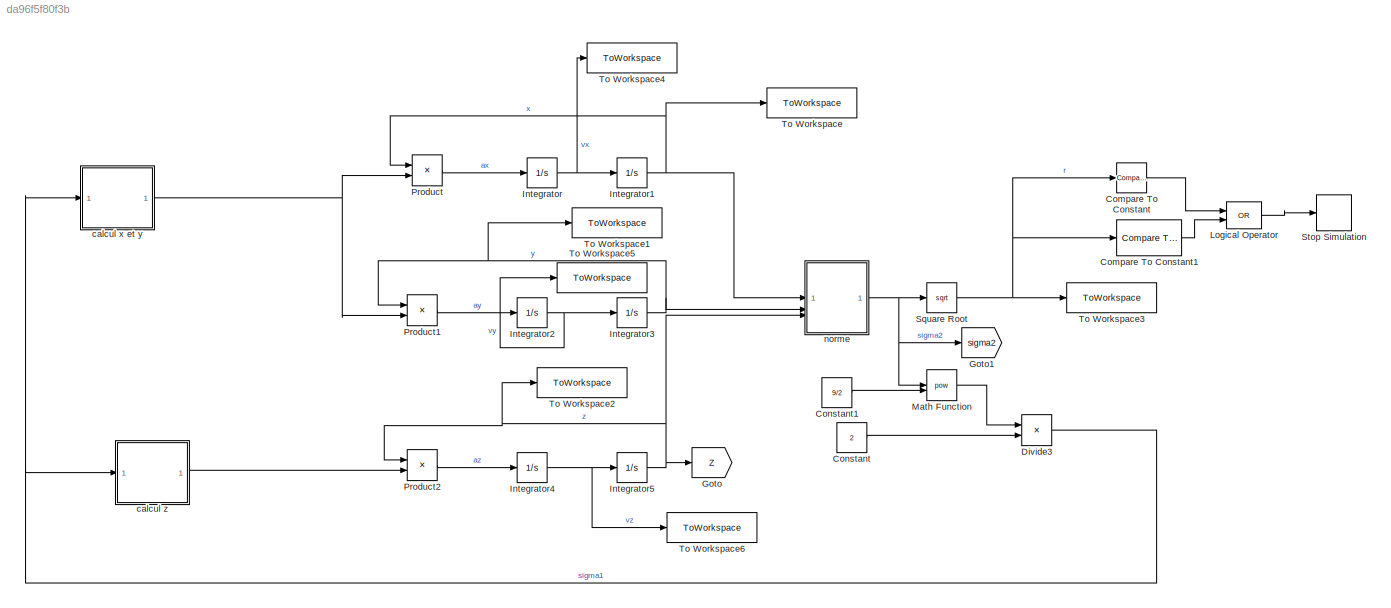
MODEL slx_da96f5f80f3b
KIND model
CONFIG AbsTol = auto
CONFIG EnableMultiTasking = off
CONFIG FixedStep = 10
CONFIG MaxStep = auto
CONFIG MinStep = auto
CONFIG RelTol = 1e-3
CONFIG SampleTimeConstraint = Unconstrained
CONFIG SolverName = FixedStepAuto
CONFIG StartTime = 0.0
CONFIG StopTime = 1000000
BLOCK [Reference] Compare To Constant  REF=simulink/Logic and Bit
Operations/Compare
To Constant
  SourceBlock = simulink/Logic and Bit\nOperations/Compare\nTo Constant
  SourceType = Compare To Constant
BLOCK [Reference] Compare To Constant1  REF=simulink/Logic and Bit
Operations/Compare
To Constant
  SourceBlock = simulink/Logic and Bit\nOperations/Compare\nTo Constant
  SourceType = Compare To Constant
BLOCK [Constant] Constant
  Value = 2
BLOCK [Constant] Constant1
  Value = 9/2
BLOCK [Product] Divide3
  Inputs = **
BLOCK [Goto] Goto
  GotoTag = Z
  TagVisibility = global
BLOCK [Goto] Goto1
  GotoTag = sigma2
  TagVisibility = global
BLOCK [Integrator] Integrator
  InitialCondition = v0*sind(theta)
BLOCK [Integrator] Integrator1
  InitialCondition = r*sind(phi)*cosd(theta)
BLOCK [Integrator] Integrator2
  InitialCondition = -v0*cosd(theta)
BLOCK [Integrator] Integrator3
  InitialCondition = r*sind(phi)*sind(theta)
BLOCK [Integrator] Integrator4
BLOCK [Integrator] Integrator5
  InitialCondition = r*cosd(phi)
BLOCK [Logic] Logical Operator
  AllPortsSameDT = off
  Operator = OR
  OutDataTypeStr = boolean
BLOCK [Math] Math Function
  Operator = pow
BLOCK [Product] Product
BLOCK [Product] Product1
BLOCK [Product] Product2
BLOCK [Sqrt] Square Root
BLOCK [Stop] Stop Simulation
BLOCK [ToWorkspace] To Workspace
  FixptAsFi = on
  MaxDataPoints = inf
  SampleTime = -1
  SaveFormat = Timeseries
  VariableName = x
BLOCK [ToWorkspace] To Workspace1
  FixptAsFi = on
  MaxDataPoints = inf
  SampleTime = -1
  SaveFormat = Timeseries
  VariableName = y
BLOCK [ToWorkspace] To Workspace2
  FixptAsFi = on
  MaxDataPoints = inf
  SampleTime = -1
  SaveFormat = Timeseries
  VariableName = z
BLOCK [ToWorkspace] To Workspace3
  FixptAsFi = on
  MaxDataPoints = inf
  SampleTime = -1
  SaveFormat = Timeseries
  VariableName = r
BLOCK [ToWorkspace] To Workspace4
  FixptAsFi = on
  MaxDataPoints = inf
  SampleTime = -1
  SaveFormat = Timeseries
  VariableName = vx
BLOCK [ToWorkspace] To Workspace5
  FixptAsFi = on
  MaxDataPoints = inf
  SampleTime = -1
  SaveFormat = Timeseries
  VariableName = vy
BLOCK [ToWorkspace] To Workspace6
  FixptAsFi = on
  MaxDataPoints = inf
  SampleTime = -1
  SaveFormat = Timeseries
  VariableName = vz
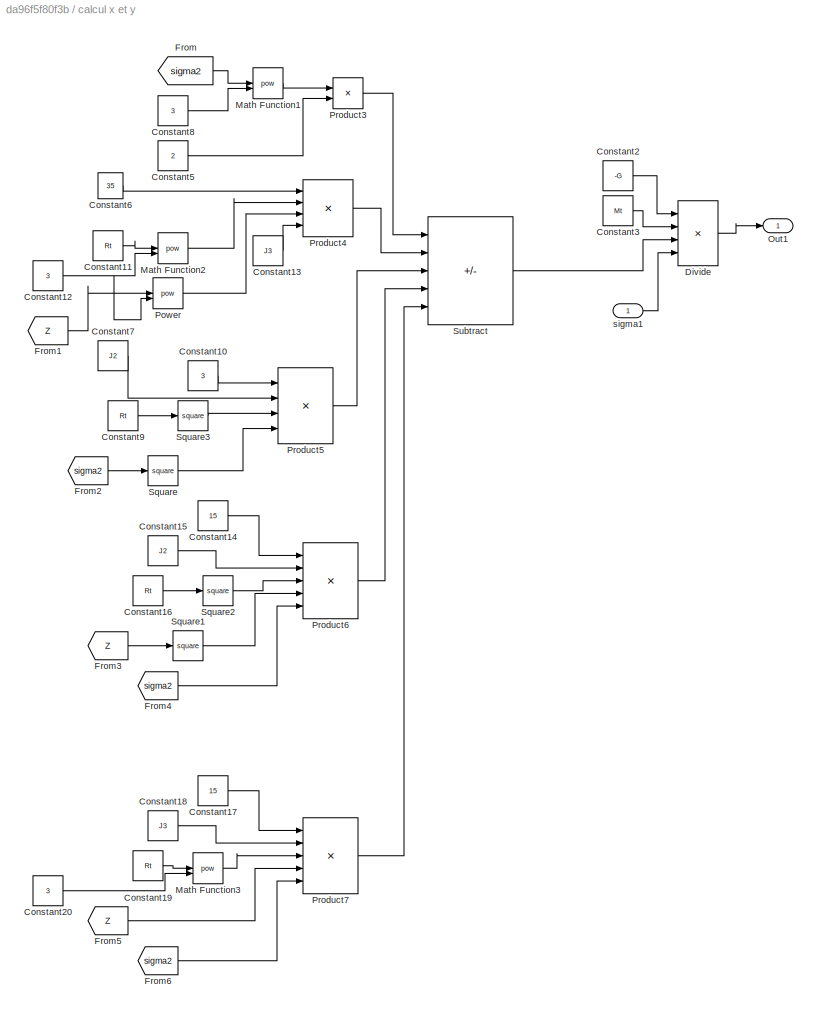
BLOCK [SubSystem] calcul x et y
BLOCK [Constant] calcul x et y/Constant10
  Value = 3
BLOCK [Constant] calcul x et y/Constant11
  Value = Rt
BLOCK [Constant] calcul x et y/Constant12
  Value = 3
BLOCK [Constant] calcul x et y/Constant13
  Value = J3
BLOCK [Constant] calcul x et y/Constant14
  Value = 15
BLOCK [Constant] calcul x et y/Constant15
  Value = J2
BLOCK [Constant] calcul x et y/Constant16
  Value = Rt
BLOCK [Constant] calcul x et y/Constant17
  Value = 15
BLOCK [Constant] calcul x et y/Constant18
  Value = J3
BLOCK [Constant] calcul x et y/Constant19
  Value = Rt
BLOCK [Constant] calcul x et y/Constant2
  Value = -G
BLOCK [Constant] calcul x et y/Constant20
  Value = 3
BLOCK [Constant] calcul x et y/Constant3
  Value = Mt
BLOCK [Constant] calcul x et y/Constant5
  Value = 2
BLOCK [Constant] calcul x et y/Constant6
  Value = 35
BLOCK [Constant] calcul x et y/Constant7
  Value = J2
BLOCK [Constant] calcul x et y/Constant8
  Value = 3
BLOCK [Constant] calcul x et y/Constant9
  Value = Rt
BLOCK [Product] calcul x et y/Divide
  Inputs = ***/
BLOCK [From] calcul x et y/From
  GotoTag = sigma2
  TagVisibility = global
BLOCK [From] calcul x et y/From1
  GotoTag = Z
  TagVisibility = global
BLOCK [From] calcul x et y/From2
  GotoTag = sigma2
  TagVisibility = global
BLOCK [From] calcul x et y/From3
  GotoTag = Z
  TagVisibility = global
BLOCK [From] calcul x et y/From4
  GotoTag = sigma2
  TagVisibility = global
BLOCK [From] calcul x et y/From5
  GotoTag = Z
  TagVisibility = global
BLOCK [From] calcul x et y/From6
  GotoTag = sigma2
  TagVisibility = global
BLOCK [Math] calcul x et y/Math Function1
  Operator = pow
BLOCK [Math] calcul x et y/Math Function2
  Operator = pow
BLOCK [Math] calcul x et y/Math Function3
  Operator = pow
BLOCK [Outport] calcul x et y/Out1
BLOCK [Math] calcul x et y/Power
  Operator = pow
BLOCK [Product] calcul x et y/Product3
BLOCK [Product] calcul x et y/Product4
  Inputs = 4
BLOCK [Product] calcul x et y/Product5
  Inputs = 4
BLOCK [Product] calcul x et y/Product6
  Inputs = 5
BLOCK [Product] calcul x et y/Product7
  Inputs = 5
BLOCK [Math] calcul x et y/Square
  Operator = square
BLOCK [Math] calcul x et y/Square1
  Operator = square
BLOCK [Math] calcul x et y/Square2
  Operator = square
BLOCK [Math] calcul x et y/Square3
  Operator = square
BLOCK [Sum] calcul x et y/Subtract
  IconShape = rectangular
  Inputs = +-+-+
BLOCK [Inport] calcul x et y/sigma1
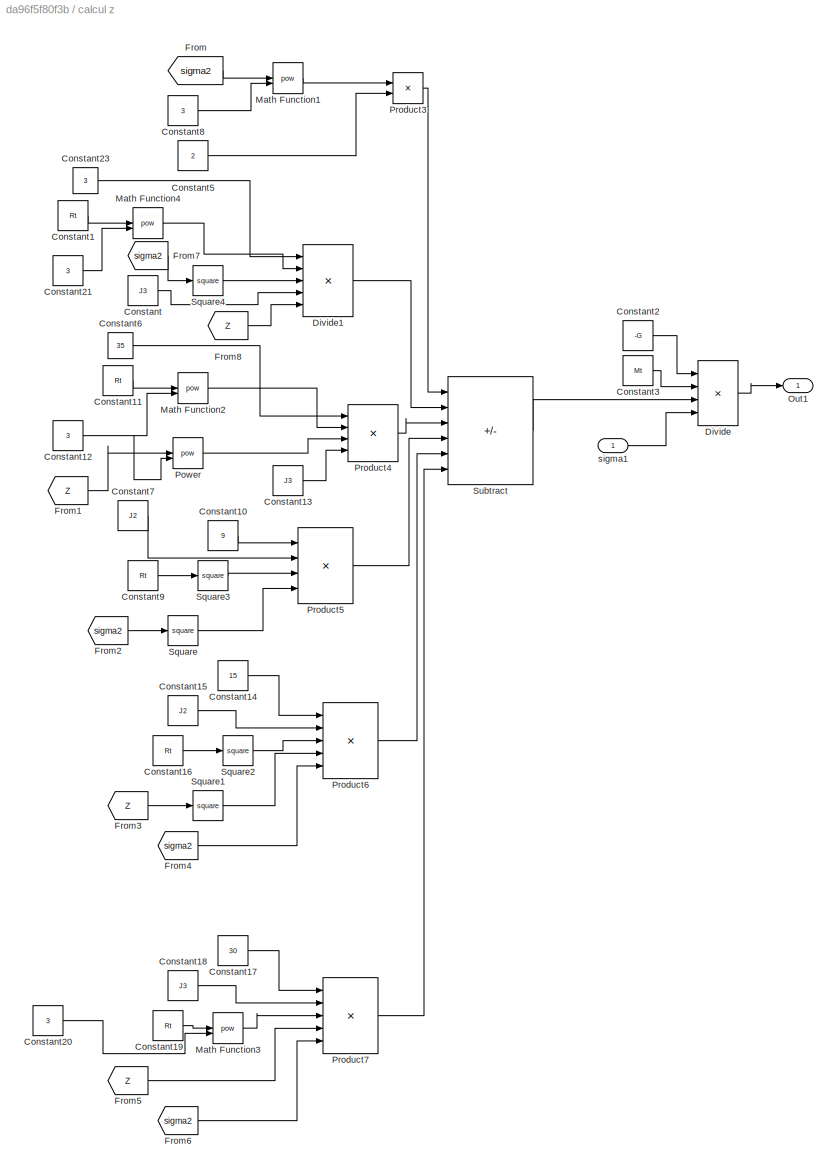
BLOCK [SubSystem] calcul z
BLOCK [Constant] calcul z/Constant
  Value = J3
BLOCK [Constant] calcul z/Constant1
  Value = Rt
BLOCK [Constant] calcul z/Constant10
  Value = 9
BLOCK [Constant] calcul z/Constant11
  Value = Rt
BLOCK [Constant] calcul z/Constant12
  Value = 3
BLOCK [Constant] calcul z/Constant13
  Value = J3
BLOCK [Constant] calcul z/Constant14
  Value = 15
BLOCK [Constant] calcul z/Constant15
  Value = J2
BLOCK [Constant] calcul z/Constant16
  Value = Rt
BLOCK [Constant] calcul z/Constant17
  Value = 30
BLOCK [Constant] calcul z/Constant18
  Value = J3
BLOCK [Constant] calcul z/Constant19
  Value = Rt
BLOCK [Constant] calcul z/Constant2
  Value = -G
BLOCK [Constant] calcul z/Constant20
  Value = 3
BLOCK [Constant] calcul z/Constant21
  Value = 3
BLOCK [Constant] calcul z/Constant23
  Value = 3
BLOCK [Constant] calcul z/Constant3
  Value = Mt
BLOCK [Constant] calcul z/Constant5
  Value = 2
BLOCK [Constant] calcul z/Constant6
  Value = 35
BLOCK [Constant] calcul z/Constant7
  Value = J2
BLOCK [Constant] calcul z/Constant8
  Value = 3
BLOCK [Constant] calcul z/Constant9
  Value = Rt
BLOCK [Product] calcul z/Divide
  Inputs = ***/
BLOCK [Product] calcul z/Divide1
  Inputs = ****/
BLOCK [From] calcul z/From
  GotoTag = sigma2
  TagVisibility = global
BLOCK [From] calcul z/From1
  GotoTag = Z
  TagVisibility = global
BLOCK [From] calcul z/From2
  GotoTag = sigma2
  TagVisibility = global
BLOCK [From] calcul z/From3
  GotoTag = Z
  TagVisibility = global
BLOCK [From] calcul z/From4
  GotoTag = sigma2
  TagVisibility = global
BLOCK [From] calcul z/From5
  GotoTag = Z
  TagVisibility = global
BLOCK [From] calcul z/From6
  GotoTag = sigma2
  TagVisibility = global
BLOCK [From] calcul z/From7
  GotoTag = sigma2
  TagVisibility = global
BLOCK [From] calcul z/From8
  GotoTag = Z
  TagVisibility = global
BLOCK [Math] calcul z/Math Function1
  Operator = pow
BLOCK [Math] calcul z/Math Function2
  Operator = pow
BLOCK [Math] calcul z/Math Function3
  Operator = pow
BLOCK [Math] calcul z/Math Function4
  Operator = pow
BLOCK [Outport] calcul z/Out1
BLOCK [Math] calcul z/Power
  Operator = pow
BLOCK [Product] calcul z/Product3
BLOCK [Product] calcul z/Product4
  Inputs = 4
BLOCK [Product] calcul z/Product5
  Inputs = 4
BLOCK [Product] calcul z/Product6
  Inputs = 5
BLOCK [Product] calcul z/Product7
  Inputs = 5
BLOCK [Math] calcul z/Square
  Operator = square
BLOCK [Math] calcul z/Square1
  Operator = square
BLOCK [Math] calcul z/Square2
  Operator = square
BLOCK [Math] calcul z/Square3
  Operator = square
BLOCK [Math] calcul z/Square4
  Operator = square
BLOCK [Sum] calcul z/Subtract
  IconShape = rectangular
  Inputs = +--+-+
BLOCK [Inport] calcul z/sigma1
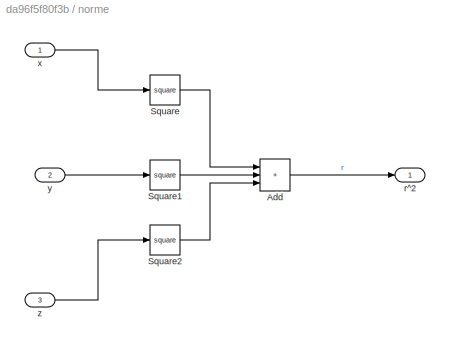
BLOCK [SubSystem] norme
BLOCK [Sum] norme/Add
  IconShape = rectangular
  Inputs = +++
BLOCK [Math] norme/Square
  Operator = square
BLOCK [Math] norme/Square1
  Operator = square
BLOCK [Math] norme/Square2
  Operator = square
BLOCK [Outport] norme/r^2
BLOCK [Inport] norme/x
BLOCK [Inport] norme/y
  Port = 2
BLOCK [Inport] norme/z
  Port = 3
LINE Compare To Constant1:1 -> Logical Operator:2
LINE Compare To Constant:1 -> Logical Operator:1
LINE Constant1:1 -> Math Function:2
LINE Constant:1 -> Divide3:2
NET Divide3:1 -> calcul x et y:1, calcul z:1
NET Integrator1:1 -> Product:1, To Workspace:1, norme:1
NET Integrator2:1 -> Integrator3:1, To Workspace5:1
NET Integrator3:1 -> Product1:1, To Workspace1:1, norme:2
NET Integrator4:1 -> Integrator5:1, To Workspace6:1
NET Integrator5:1 -> Goto:1, Product2:1, To Workspace2:1, norme:3
NET Integrator:1 -> Integrator1:1, To Workspace4:1
LINE Logical Operator:1 -> Stop Simulation:1
LINE Math Function:1 -> Divide3:1
LINE Product1:1 -> Integrator2:1
LINE Product2:1 -> Integrator4:1
LINE Product:1 -> Integrator:1
NET Square Root:1 -> Compare To Constant1:1, Compare To Constant:1, To Workspace3:1
LINE calcul x et y/Constant10:1 -> calcul x et y/Product5:1
LINE calcul x et y/Constant11:1 -> calcul x et y/Math Function2:1
NET calcul x et y/Constant12:1 -> calcul x et y/Math Function2:2, calcul x et y/Power:2
LINE calcul x et y/Constant13:1 -> calcul x et y/Product4:4
LINE calcul x et y/Constant14:1 -> calcul x et y/Product6:1
LINE calcul x et y/Constant15:1 -> calcul x et y/Product6:2
LINE calcul x et y/Constant16:1 -> calcul x et y/Square2:1
LINE calcul x et y/Constant17:1 -> calcul x et y/Product7:1
LINE calcul x et y/Constant18:1 -> calcul x et y/Product7:2
LINE calcul x et y/Constant19:1 -> calcul x et y/Math Function3:1
LINE calcul x et y/Constant20:1 -> calcul x et y/Math Function3:2
LINE calcul x et y/Constant2:1 -> calcul x et y/Divide:1
LINE calcul x et y/Constant3:1 -> calcul x et y/Divide:2
LINE calcul x et y/Constant5:1 -> calcul x et y/Product3:2
LINE calcul x et y/Constant6:1 -> calcul x et y/Product4:1
LINE calcul x et y/Constant7:1 -> calcul x et y/Product5:2
LINE calcul x et y/Constant8:1 -> calcul x et y/Math Function1:2
LINE calcul x et y/Constant9:1 -> calcul x et y/Square3:1
LINE calcul x et y/Divide:1 -> calcul x et y/Out1:1
LINE calcul x et y/From1:1 -> calcul x et y/Power:1
LINE calcul x et y/From2:1 -> calcul x et y/Square:1
LINE calcul x et y/From3:1 -> calcul x et y/Square1:1
LINE calcul x et y/From4:1 -> calcul x et y/Product6:5
LINE calcul x et y/From5:1 -> calcul x et y/Product7:4
LINE calcul x et y/From6:1 -> calcul x et y/Product7:5
LINE calcul x et y/From:1 -> calcul x et y/Math Function1:1
LINE calcul x et y/Math Function1:1 -> calcul x et y/Product3:1
LINE calcul x et y/Math Function2:1 -> calcul x et y/Product4:2
LINE calcul x et y/Math Function3:1 -> calcul x et y/Product7:3
LINE calcul x et y/Power:1 -> calcul x et y/Product4:3
LINE calcul x et y/Product3:1 -> calcul x et y/Subtract:1
LINE calcul x et y/Product4:1 -> calcul x et y/Subtract:2
LINE calcul x et y/Product5:1 -> calcul x et y/Subtract:3
LINE calcul x et y/Product6:1 -> calcul x et y/Subtract:4
LINE calcul x et y/Product7:1 -> calcul x et y/Subtract:5
LINE calcul x et y/Square1:1 -> calcul x et y/Product6:4
LINE calcul x et y/Square2:1 -> calcul x et y/Product6:3
LINE calcul x et y/Square3:1 -> calcul x et y/Product5:3
LINE calcul x et y/Square:1 -> calcul x et y/Product5:4
LINE calcul x et y/Subtract:1 -> calcul x et y/Divide:3
LINE calcul x et y/sigma1:1 -> calcul x et y/Divide:4
NET calcul x et y:1 -> Product1:2, Product:2
LINE calcul z/Constant10:1 -> calcul z/Product5:1
LINE calcul z/Constant11:1 -> calcul z/Math Function2:1
NET calcul z/Constant12:1 -> calcul z/Math Function2:2, calcul z/Power:2
LINE calcul z/Constant13:1 -> calcul z/Product4:4
LINE calcul z/Constant14:1 -> calcul z/Product6:1
LINE calcul z/Constant15:1 -> calcul z/Product6:2
LINE calcul z/Constant16:1 -> calcul z/Square2:1
LINE calcul z/Constant17:1 -> calcul z/Product7:1
LINE calcul z/Constant18:1 -> calcul z/Product7:2
LINE calcul z/Constant19:1 -> calcul z/Math Function3:1
LINE calcul z/Constant1:1 -> calcul z/Math Function4:1
LINE calcul z/Constant20:1 -> calcul z/Math Function3:2
LINE calcul z/Constant21:1 -> calcul z/Math Function4:2
LINE calcul z/Constant23:1 -> calcul z/Divide1:1
LINE calcul z/Constant2:1 -> calcul z/Divide:1
LINE calcul z/Constant3:1 -> calcul z/Divide:2
LINE calcul z/Constant5:1 -> calcul z/Product3:2
LINE calcul z/Constant6:1 -> calcul z/Product4:1
LINE calcul z/Constant7:1 -> calcul z/Product5:2
LINE calcul z/Constant8:1 -> calcul z/Math Function1:2
LINE calcul z/Constant9:1 -> calcul z/Square3:1
LINE calcul z/Constant:1 -> calcul z/Divide1:4
LINE calcul z/Divide1:1 -> calcul z/Subtract:2
LINE calcul z/Divide:1 -> calcul z/Out1:1
LINE calcul z/From1:1 -> calcul z/Power:1
LINE calcul z/From2:1 -> calcul z/Square:1
LINE calcul z/From3:1 -> calcul z/Square1:1
LINE calcul z/From4:1 -> calcul z/Product6:5
LINE calcul z/From5:1 -> calcul z/Product7:4
LINE calcul z/From6:1 -> calcul z/Product7:5
LINE calcul z/From7:1 -> calcul z/Square4:1
LINE calcul z/From8:1 -> calcul z/Divide1:5
LINE calcul z/From:1 -> calcul z/Math Function1:1
LINE calcul z/Math Function1:1 -> calcul z/Product3:1
LINE calcul z/Math Function2:1 -> calcul z/Product4:2
LINE calcul z/Math Function3:1 -> calcul z/Product7:3
LINE calcul z/Math Function4:1 -> calcul z/Divide1:2
LINE calcul z/Power:1 -> calcul z/Product4:3
LINE calcul z/Product3:1 -> calcul z/Subtract:1
LINE calcul z/Product4:1 -> calcul z/Subtract:3
LINE calcul z/Product5:1 -> calcul z/Subtract:4
LINE calcul z/Product6:1 -> calcul z/Subtract:5
LINE calcul z/Product7:1 -> calcul z/Subtract:6
LINE calcul z/Square1:1 -> calcul z/Product6:4
LINE calcul z/Square2:1 -> calcul z/Product6:3
LINE calcul z/Square3:1 -> calcul z/Product5:3
LINE calcul z/Square4:1 -> calcul z/Divide1:3
LINE calcul z/Square:1 -> calcul z/Product5:4
LINE calcul z/Subtract:1 -> calcul z/Divide:3
LINE calcul z/sigma1:1 -> calcul z/Divide:4
LINE calcul z:1 -> Product2:2
LINE norme/Add:1 -> norme/r^2:1
LINE norme/Square1:1 -> norme/Add:2
LINE norme/Square2:1 -> norme/Add:3
LINE norme/Square:1 -> norme/Add:1
LINE norme/x:1 -> norme/Square:1
LINE norme/y:1 -> norme/Square1:1
LINE norme/z:1 -> norme/Square2:1
NET norme:1 -> Goto1:1, Math Function:1, Square Root:1
note: NET lines group one-source signal fan-out (src -> all destinations, sorted); 1:1 wires keep LINE
